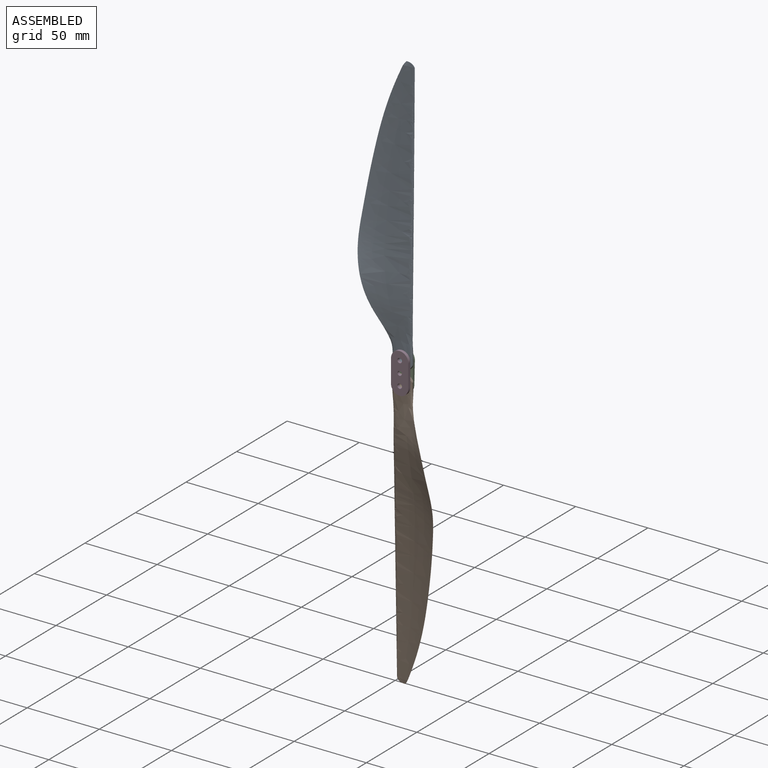
[diagram: assembled view]
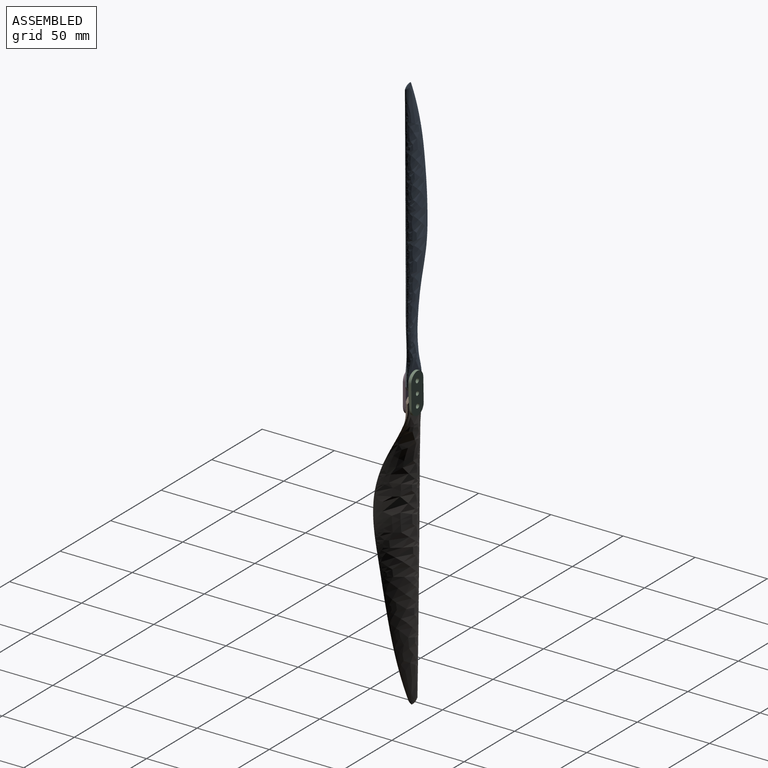
[diagram: assembled view, second angle]
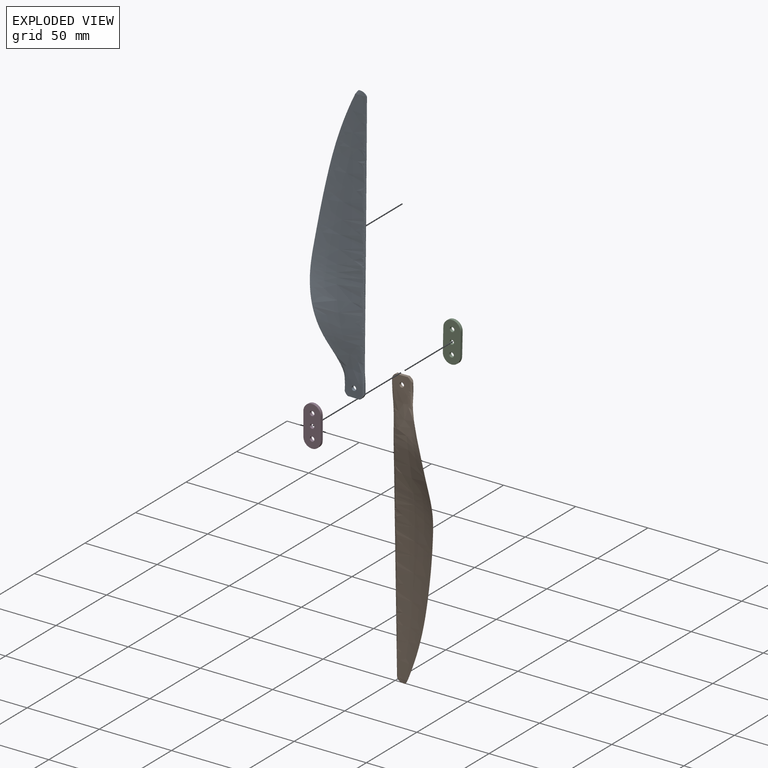
[diagram: exploded view]
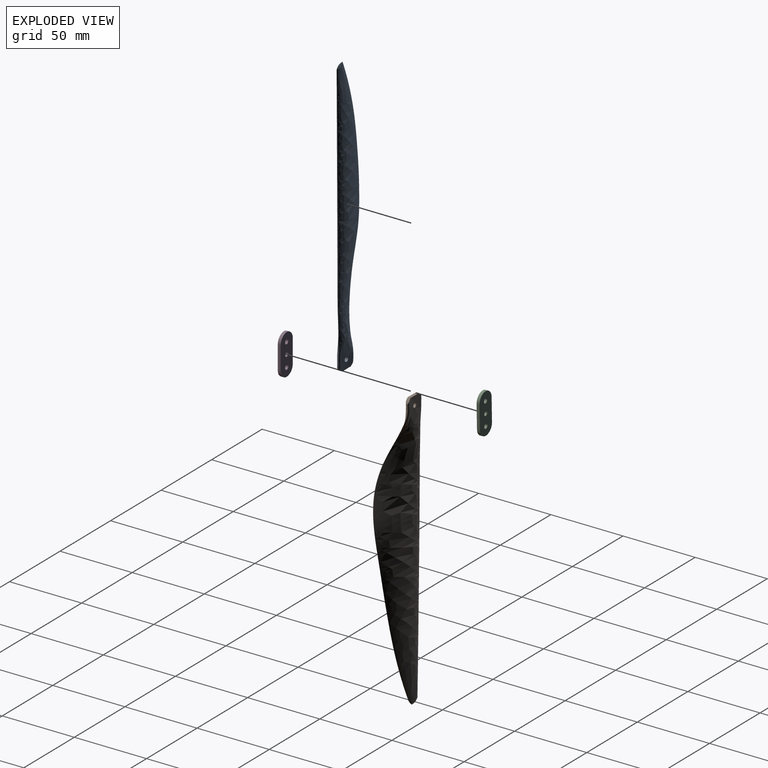
[diagram: exploded view, second angle]
ASSEMBLY  parts=4 mates=3
PART A: 6 faces, bbox 33.8x14.2x193.3 mm
  f0: bspline ~190.5x33.7mm, area 9326.2mm2, adj f1,f2,f3,f4,f5
  f1: bspline ~7.49x2.65mm, area 30.1mm2, adj f0
  f2: cylinder r=1.6mm len=3.2mm, axis (0,1,0), area 20.1mm2, adj f0
  f3: cylinder r=7.36mm len=4.07mm, axis (0,-1,0), area 8.9mm2, adj f0,f5
  f4: cylinder r=7.36mm len=3.23mm, axis (0,-1,0), area 6.2mm2, adj f0,f5
  f5: plane 8.64x2.13mm, normal (0,0,1), area 17mm2, adj f0,f3,f4
PART B: same geometry as A
PART C: 9 faces, bbox 12x2x28 mm
  f0: plane 16x2mm, normal (-1,0,0), area 32mm2, adj f1,f6,f7,f8
  f1: cylinder r=6mm len=12mm, axis (0,-1,0), area 37.7mm2, adj f0,f2,f7,f8
  f2: plane 16x2mm, normal (1,0,0), area 32mm2, adj f1,f6,f7,f8
  f3: cylinder r=1.6mm len=3.2mm, axis (0,-1,0), area 20.1mm2, adj f7,f8
  f4: cylinder r=1.6mm len=3.2mm, axis (0,-1,0), area 20.1mm2, adj f7,f8
  f5: cylinder r=1.5mm len=3mm, axis (0,-1,0), area 18.8mm2, adj f7,f8
  f6: cylinder r=6mm len=12mm, axis (0,-1,0), area 37.7mm2, adj f0,f2,f7,f8
  f7: plane 28x12mm, normal (0,1,0), area 281.9mm2, adj f0,f1,f2,f3,f4,f5,f6
  f8: plane 28x12mm, normal (0,-1,0), area 281.9mm2, adj f0,f1,f2,f3,f4,f5,f6
PART D: same geometry as C
PLACE A rot(axis=(0,-1,0),179.5deg) t=(-37.11,-61.08,-28.74)mm
PLACE B rot(axis=(0,-1,0),0.9deg) t=(-37.14,-61.08,-32.75)mm
PLACE C rot(axis=(0,1,0),1.2deg) t=(-36.92,-61.11,-32.75)mm fixed
PLACE D t=(-37.05,-65.11,-32.74)mm fixed
MATE revolute B.f2 <-> C.f1  axis (0,-1,0) through (-37.05,-62.11,-38.74)mm
MATE revolute A.f2 <-> D.f4  axis (0,-1,0) through (-37.05,-62.11,-22.74)mm
MATE revolute B.f2 <-> D.f1  axis (0,-1,0) through (-37.05,-62.11,-38.74)mm
